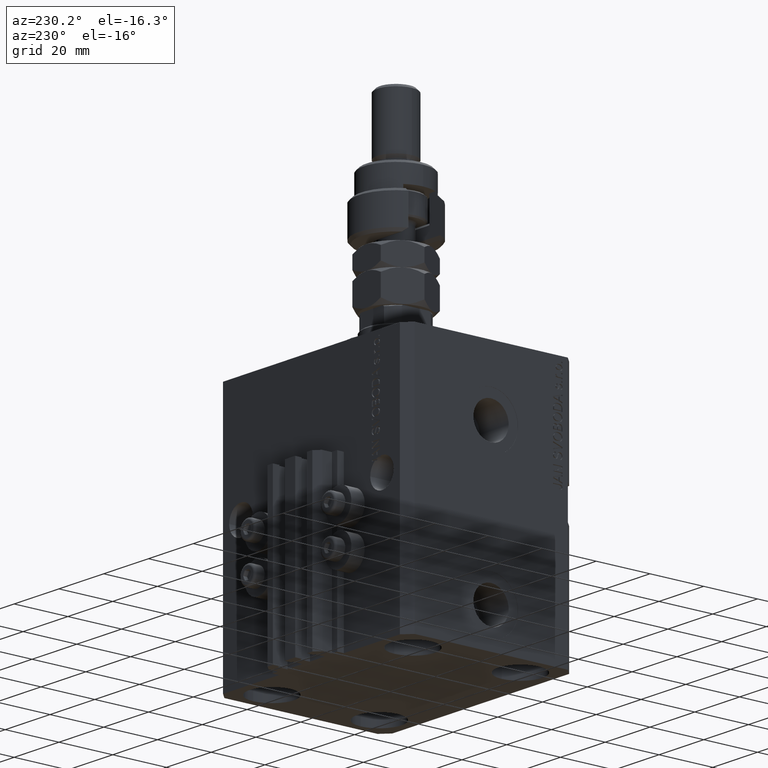
[diagram: clean part render]
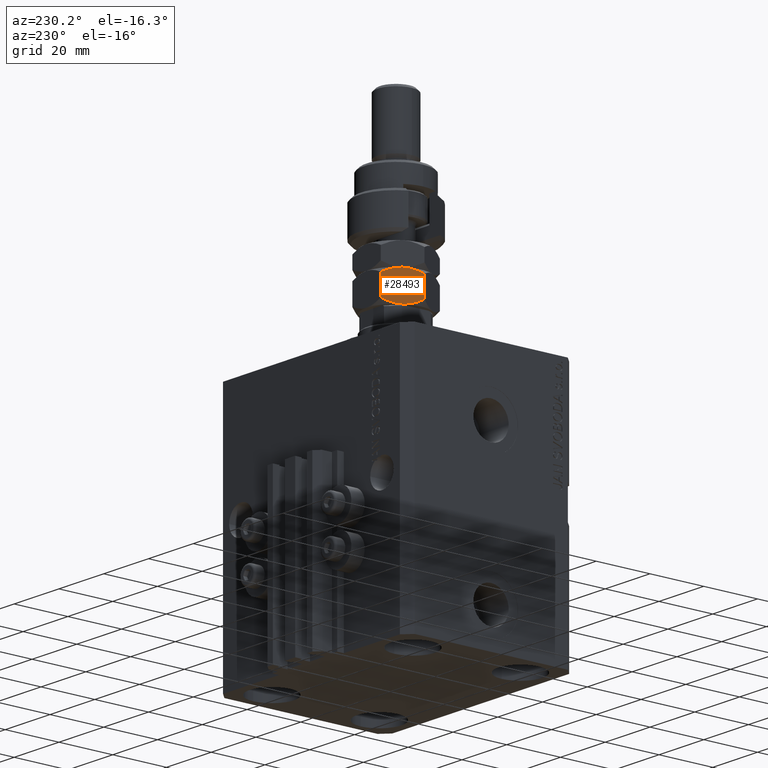
[diagram: same view with one face highlighted and labeled with its STEP entity id]
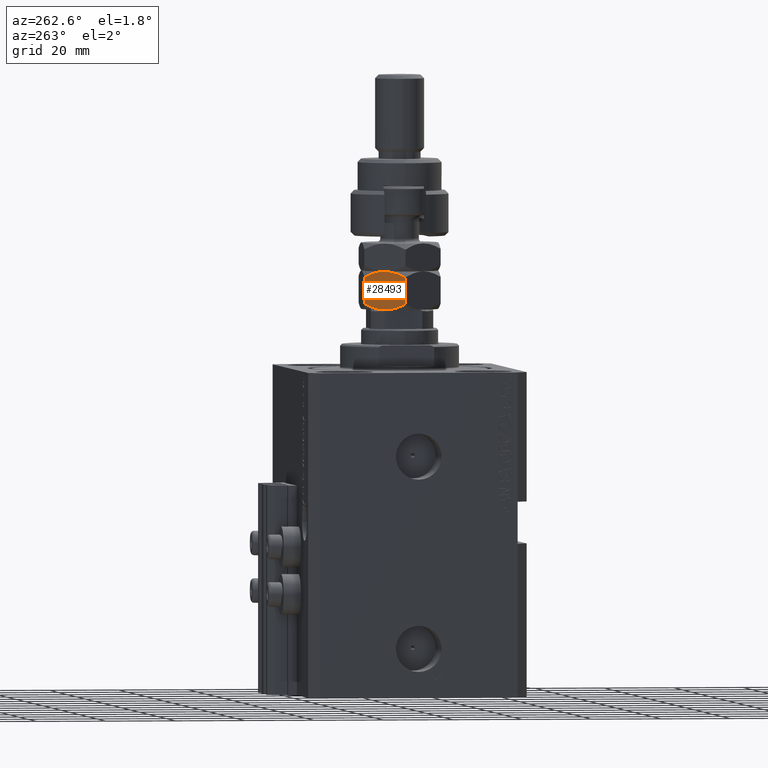
[diagram: same view with one face highlighted and labeled with its STEP entity id]
A machine part, auxiliary view. The second image highlights one B-rep face of the part: STEP entity #28493.
A second angle (auxiliary view) of the same face is appended — the face is thin or edge-on in the first view.
In plain terms, the highlighted planar face has unit normal (0.866, -0.5, 0).
Its self-contained STEP definition (entity closure, byte-faithful):
#719 = VECTOR ( 'NONE', #18336, 1000.000000000000000 ) ;
#1828 = B_SPLINE_CURVE_WITH_KNOTS ( 'NONE', 3,
 ( #20771, #37302, #40643, #24842, #28396, #5730, #33477, #36564, #5477, #44967, #28894, #28650 ),
 .UNSPECIFIED., .F., .F.,
 ( 4, 2, 2, 2, 2, 4 ),
 ( 0.01886453216956118784, 0.02051917601608022057, 0.02217381986259925677, 0.02382846370911829298, 0.02465578563237780935, 0.02548310755563732571 ),
 .UNSPECIFIED. ) ;
#2302 = B_SPLINE_CURVE_WITH_KNOTS ( 'NONE', 3,
 ( #37140, #37644, #13705, #29225, #29477, #9887, #33315, #25416 ),
 .UNSPECIFIED., .F., .F.,
 ( 4, 2, 2, 4 ),
 ( 0.02548310755563732918, 0.02714502201312678914, 0.02880693647061624910, 0.03213076538559517248 ),
 .UNSPECIFIED. ) ;
#2426 = LINE ( 'NONE', #29422, #43456 ) ;
#2548 = CARTESIAN_POINT ( 'NONE',  ( -11.00000000000000000, 6.350852961085890591, 11.00000000000000000 ) ) ;
#3568 = ORIENTED_EDGE ( 'NONE', *, *, #26703, .T. ) ;
#3706 = CARTESIAN_POINT ( 'NONE',  ( -11.00000000000000000, 6.350852961085890591, 11.00000000000000000 ) ) ;
#5424 = CARTESIAN_POINT ( 'NONE',  ( -10.99999999999999822, 5.856287164594794703, 9.545576976073807174 ) ) ;
#5477 = CARTESIAN_POINT ( 'NONE',  ( -11.00000000000000000, -1.102880524211966140, 0.05171427369706943500 ) ) ;
#5655 = EDGE_CURVE ( 'NONE', #7648, #36497, #1828, .T. ) ;
#5730 = CARTESIAN_POINT ( 'NONE',  ( -11.00000000000000355, -2.743986917173865336, 0.3257244675391401389 ) ) ;
#6191 = CARTESIAN_POINT ( 'NONE',  ( -11.00000000000000000, 6.350852961085892368, 1.701705922171765195 ) ) ;
#6213 = ORIENTED_EDGE ( 'NONE', *, *, #20843, .F. ) ;
#7441 = CARTESIAN_POINT ( 'NONE',  ( -11.00000000000000178, 4.344649988696095200, 0.7819333922108999690 ) ) ;
#7648 = VERTEX_POINT ( 'NONE', #14448 ) ;
#8790 = ORIENTED_EDGE ( 'NONE', *, *, #18892, .F. ) ;
#9887 = CARTESIAN_POINT ( 'NONE',  ( -11.00000000000000178, -4.344649988696089871, 10.21806660778910114 ) ) ;
#12754 = VERTEX_POINT ( 'NONE', #31660 ) ;
#12920 = CARTESIAN_POINT ( 'NONE',  ( -11.00000000000000000, 0.000000000000000000, 0.000000000000000000 ) ) ;
#13320 = CARTESIAN_POINT ( 'NONE',  ( -11.00000000000000178, 5.349315167928749837, 9.777295308501310345 ) ) ;
#13533 = B_SPLINE_CURVE_WITH_KNOTS ( 'NONE', 3,
 ( #22732, #26795, #33687, #30365, #25771, #7441, #49754, #14065 ),
 .UNSPECIFIED., .F., .F.,
 ( 4, 2, 2, 4 ),
 ( 0.02548310755563732571, 0.02714502201312678914, 0.02880693647061625257, 0.03213076538559517942 ),
 .UNSPECIFIED. ) ;
#13662 = EDGE_CURVE ( 'NONE', #29018, #37509, #15933, .T. ) ;
#13705 = CARTESIAN_POINT ( 'NONE',  ( -11.00000000000000178, -1.099784029505286753, 10.95829822225798189 ) ) ;
#14065 = CARTESIAN_POINT ( 'NONE',  ( -11.00000000000000000, 6.350852961085892368, 1.701705922171765195 ) ) ;
#14448 = CARTESIAN_POINT ( 'NONE',  ( -11.00000000000000000, -6.350852961085885262, 1.701705922171762309 ) ) ;
#14658 = DIRECTION ( 'NONE',  ( 1.000000000000000000, 0.000000000000000000, -0.000000000000000000 ) ) ;
#15670 = DIRECTION ( 'NONE',  ( -0.000000000000000000, 0.000000000000000000, -1.000000000000000000 ) ) ;
#15933 = B_SPLINE_CURVE_WITH_KNOTS ( 'NONE', 3,
 ( #43429, #5424, #13320, #24790, #28841, #24037, #39582, #24536, #48236, #20206, #28341, #21205 ),
 .UNSPECIFIED., .F., .F.,
 ( 4, 2, 2, 2, 2, 4 ),
 ( 0.01886453216956118090, 0.02051917601608021710, 0.02217381986259925331, 0.02382846370911829298, 0.02465578563237780935, 0.02548310755563732918 ),
 .UNSPECIFIED. ) ;
#18336 = DIRECTION ( 'NONE',  ( -0.000000000000000000, -0.000000000000000000, -1.000000000000000000 ) ) ;
#18892 = EDGE_CURVE ( 'NONE', #36497, #44216, #13533, .T. ) ;
#20206 = CARTESIAN_POINT ( 'NONE',  ( -11.00000000000000178, 0.5501206218979307616, 10.98970138300551191 ) ) ;
#20771 = CARTESIAN_POINT ( 'NONE',  ( -11.00000000000000000, -6.350852961085885262, 1.701705922171762309 ) ) ;
#20843 = EDGE_CURVE ( 'NONE', #12754, #7648, #2426, .T. ) ;
#21205 = CARTESIAN_POINT ( 'NONE',  ( -10.99999999999999467, 0.000000000000000000, 11.00000000000000000 ) ) ;
#22558 = PLANE ( 'NONE',  #26016 ) ;
#22732 = CARTESIAN_POINT ( 'NONE',  ( -11.00000000000000000, 0.000000000000000000, 0.000000000000000000 ) ) ;
#24037 = CARTESIAN_POINT ( 'NONE',  ( -11.00000000000000355, 2.743986917173868889, 10.67427553246086447 ) ) ;
#24536 = CARTESIAN_POINT ( 'NONE',  ( -11.00000000000000178, 1.381217716854158839, 10.91695300848609840 ) ) ;
#24790 = CARTESIAN_POINT ( 'NONE',  ( -10.99999999999999822, 4.323029509133805348, 10.19034626474623195 ) ) ;
#24842 = CARTESIAN_POINT ( 'NONE',  ( -10.99999999999999822, -4.323029509133801795, 0.8096537352537663823 ) ) ;
#25316 = ORIENTED_EDGE ( 'NONE', *, *, #5655, .F. ) ;
#25416 = CARTESIAN_POINT ( 'NONE',  ( -11.00000000000000000, -6.350852961085885262, 9.298294077828238358 ) ) ;
#25771 = CARTESIAN_POINT ( 'NONE',  ( -11.00000000000000000, 2.731989201781030108, 0.3224669455115858896 ) ) ;
#26016 = AXIS2_PLACEMENT_3D ( 'NONE', #3706, #14658, #15670 ) ;
#26703 = EDGE_CURVE ( 'NONE', #29018, #44216, #44863, .T. ) ;
#26795 = CARTESIAN_POINT ( 'NONE',  ( -11.00000000000000178, 0.5516605423237670447, -8.385626177817573357E-17 ) ) ;
#28341 = CARTESIAN_POINT ( 'NONE',  ( -11.00000000000000000, 0.2746235576716384852, 11.00000000000000355 ) ) ;
#28396 = CARTESIAN_POINT ( 'NONE',  ( -11.00000000000000000, -3.802713407336412832, 0.6276910765349058563 ) ) ;
#28493 = ADVANCED_FACE ( 'NONE', ( #37096 ), #22558, .F. ) ;
#28495 = ORIENTED_EDGE ( 'NONE', *, *, #13662, .F. ) ;
#28650 = CARTESIAN_POINT ( 'NONE',  ( -11.00000000000000000, 0.000000000000000000, 0.000000000000000000 ) ) ;
#28841 = CARTESIAN_POINT ( 'NONE',  ( -11.00000000000000000, 3.802713407336418605, 10.37230892346509670 ) ) ;
#28894 = CARTESIAN_POINT ( 'NONE',  ( -11.00000000000000000, -0.2746235576716408167, 4.192813088908779283E-17 ) ) ;
#29018 = VERTEX_POINT ( 'NONE', #29249 ) ;
#29225 = CARTESIAN_POINT ( 'NONE',  ( -10.99999999999999822, -2.189438957741030478, 10.79717463374928421 ) ) ;
#29249 = CARTESIAN_POINT ( 'NONE',  ( -11.00000000000000000, 6.350852961085890591, 9.298294077828234805 ) ) ;
#29422 = CARTESIAN_POINT ( 'NONE',  ( -11.00000000000000000, -6.350852961085885262, 11.00000000000000000 ) ) ;
#29477 = CARTESIAN_POINT ( 'NONE',  ( -11.00000000000000000, -2.731989201781029220, 10.67753305448841772 ) ) ;
#30365 = CARTESIAN_POINT ( 'NONE',  ( -10.99999999999999822, 2.189438957741033587, 0.2028253662507157051 ) ) ;
#31544 = EDGE_CURVE ( 'NONE', #37509, #12754, #2302, .T. ) ;
#31660 = CARTESIAN_POINT ( 'NONE',  ( -11.00000000000000000, -6.350852961085885262, 9.298294077828238358 ) ) ;
#33315 = CARTESIAN_POINT ( 'NONE',  ( -10.99999999999999822, -5.363576505757326807, 9.791932305492514033 ) ) ;
#33477 = CARTESIAN_POINT ( 'NONE',  ( -10.99999999999999822, -2.205563362884371603, 0.2057656002039695009 ) ) ;
#33687 = CARTESIAN_POINT ( 'NONE',  ( -11.00000000000000178, 1.099784029505287197, 0.04170177774201792864 ) ) ;
#36497 = VERTEX_POINT ( 'NONE', #12920 ) ;
#36564 = CARTESIAN_POINT ( 'NONE',  ( -11.00000000000000178, -1.381217716854155286, 0.08304699151390193546 ) ) ;
#37089 = DIRECTION ( 'NONE',  ( -0.000000000000000000, -0.000000000000000000, -1.000000000000000000 ) ) ;
#37096 = FACE_OUTER_BOUND ( 'NONE', #45176, .T. ) ;
#37140 = CARTESIAN_POINT ( 'NONE',  ( -10.99999999999999467, 0.000000000000000000, 11.00000000000000000 ) ) ;
#37302 = CARTESIAN_POINT ( 'NONE',  ( -10.99999999999999822, -5.856287164594788486, 1.454423023926191938 ) ) ;
#37509 = VERTEX_POINT ( 'NONE', #49086 ) ;
#37644 = CARTESIAN_POINT ( 'NONE',  ( -11.00000000000000178, -0.5516605423237683770, 11.00000000000000355 ) ) ;
#39582 = CARTESIAN_POINT ( 'NONE',  ( -10.99999999999999822, 2.205563362884376488, 10.79423439979602861 ) ) ;
#40174 = ORIENTED_EDGE ( 'NONE', *, *, #31544, .F. ) ;
#40643 = CARTESIAN_POINT ( 'NONE',  ( -11.00000000000000178, -5.349315167928746284, 1.222704691498690321 ) ) ;
#43429 = CARTESIAN_POINT ( 'NONE',  ( -11.00000000000000000, 6.350852961085890591, 9.298294077828234805 ) ) ;
#43456 = VECTOR ( 'NONE', #37089, 1000.000000000000000 ) ;
#44216 = VERTEX_POINT ( 'NONE', #6191 ) ;
#44863 = LINE ( 'NONE', #2548, #719 ) ;
#44967 = CARTESIAN_POINT ( 'NONE',  ( -11.00000000000000178, -0.5501206218979342033, 0.01029861699449343727 ) ) ;
#45176 = EDGE_LOOP ( 'NONE', ( #25316, #6213, #40174, #28495, #3568, #8790 ) ) ;
#48236 = CARTESIAN_POINT ( 'NONE',  ( -11.00000000000000000, 1.102880524211963253, 10.94828572630293273 ) ) ;
#49086 = CARTESIAN_POINT ( 'NONE',  ( -10.99999999999999467, 0.000000000000000000, 11.00000000000000000 ) ) ;
#49754 = CARTESIAN_POINT ( 'NONE',  ( -10.99999999999999822, 5.363576505757334800, 1.208067694507487744 ) ) ;